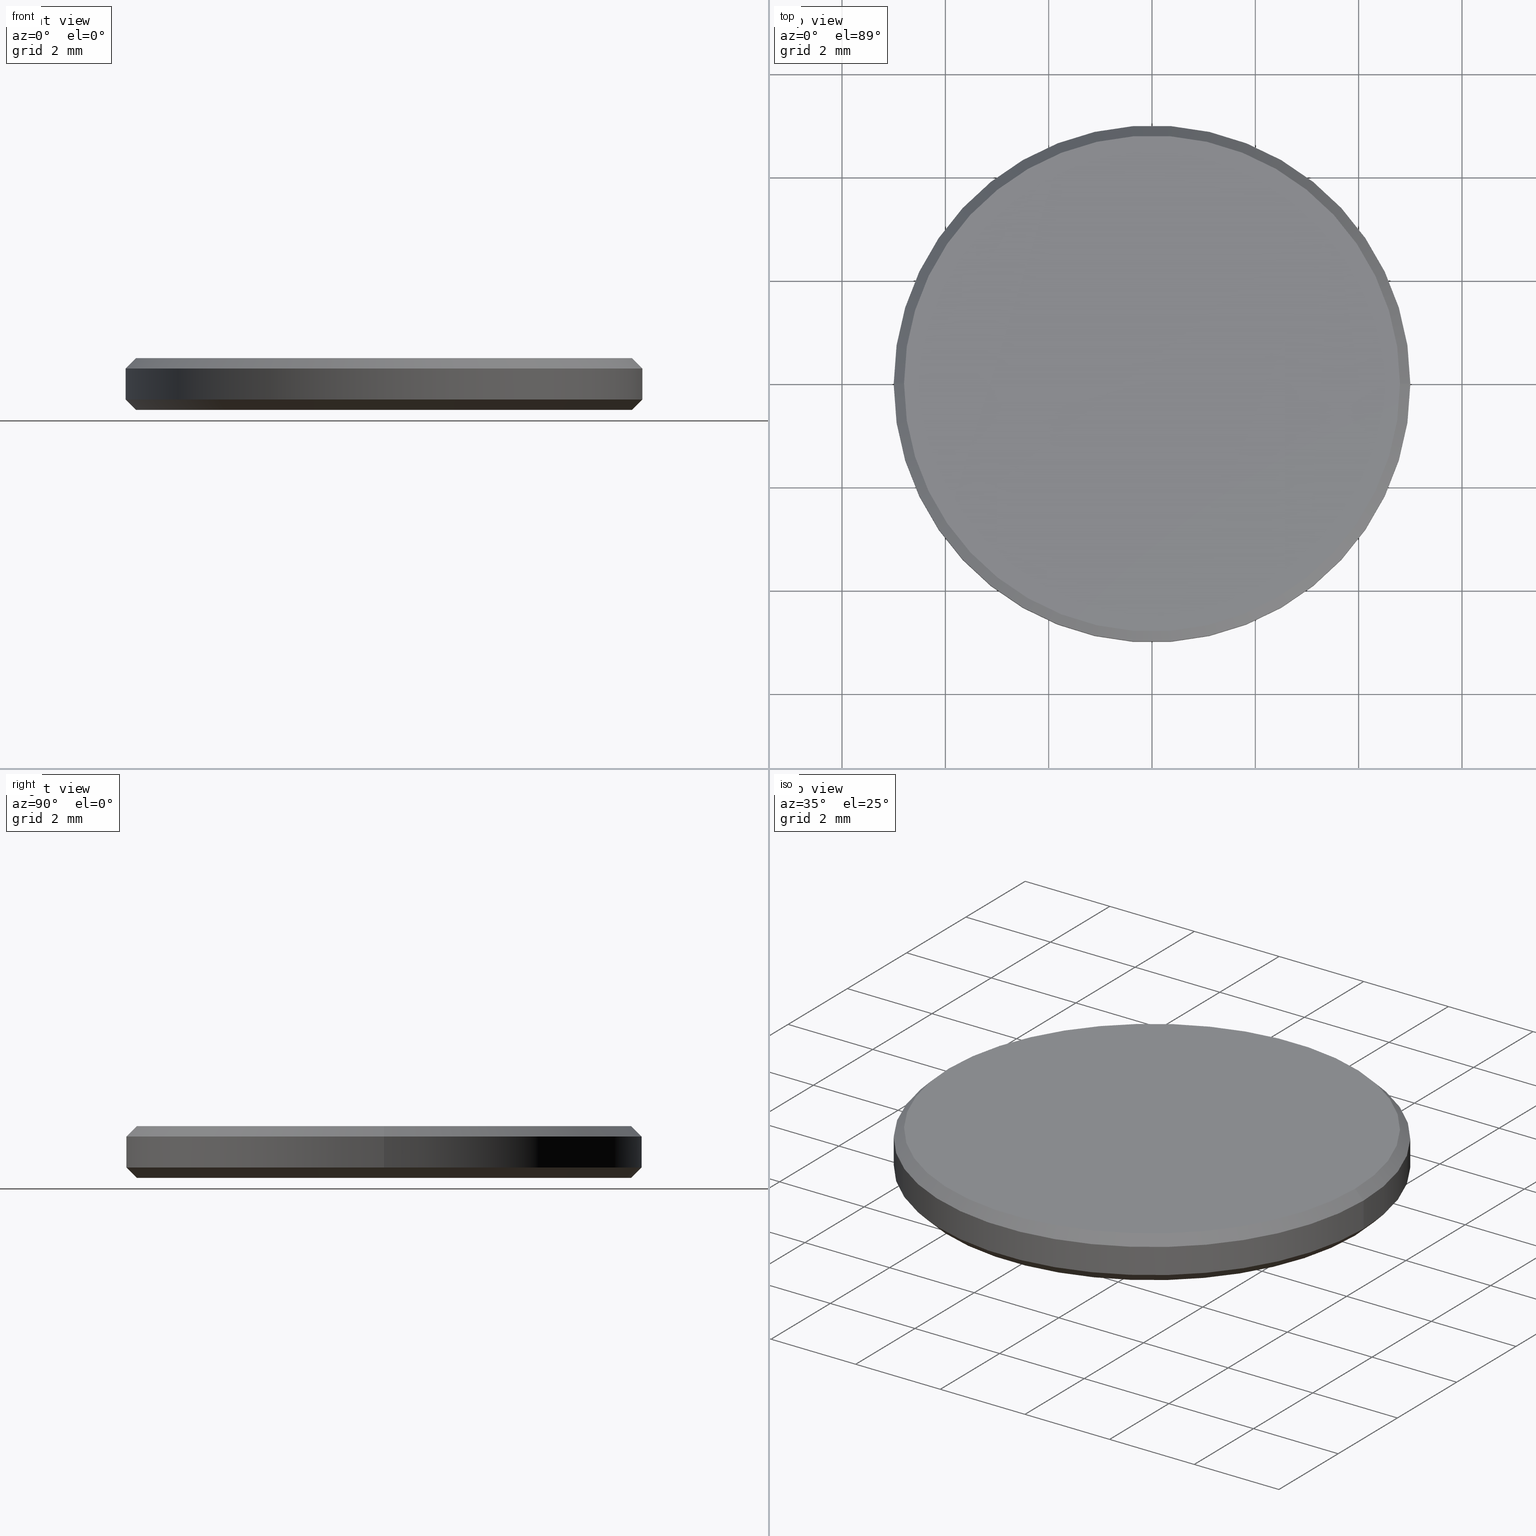
[diagram: canonical four-view strip — front | top / right | iso, engineering-drawing reading convention]
A machine part, canonical four-view strip (front | top / right | iso — engineering-drawing reading convention). The complete STEP part file that produces these views, byte-faithful:
ISO-10303-21;
HEADER;
FILE_DESCRIPTION (( 'STEP AP214' ),
    '1' );
FILE_NAME ('GNIF-190-4680-D10.STEP',
    '2024-07-19T14:44:36',
    ( '' ),
    ( '' ),
    'SwSTEP 2.0',
    'SolidWorks 2022',
    '' );
FILE_SCHEMA (( 'AUTOMOTIVE_DESIGN' ));
ENDSEC;

DATA;
#1 = MECHANICAL_DESIGN_GEOMETRIC_PRESENTATION_REPRESENTATION (  '', ( #180 ), #56 ) ;
#2 = PRESENTATION_LAYER_ASSIGNMENT (  '', '', ( #182 ) ) ;
#3 = DIRECTION ( 'NONE',  ( -0.000000000000000000, -0.000000000000000000, -1.000000000000000000 ) ) ;
#4 =( NAMED_UNIT ( * ) PLANE_ANGLE_UNIT ( ) SI_UNIT ( $, .RADIAN. ) );
#5 = EDGE_CURVE ( 'NONE', #136, #124, #221, .T. ) ;
#6 = DIRECTION ( 'NONE',  ( 1.000000000000000000, 0.000000000000000000, 0.000000000000000000 ) ) ;
#7 = DIRECTION ( 'NONE',  ( 0.7071067811865490160, 0.000000000000000000, 0.7071067811865459074 ) ) ;
#8 = APPLICATION_PROTOCOL_DEFINITION ( 'draft international standard', 'automotive_design', 1998, #197 ) ;
#9 = CIRCLE ( 'NONE', #138, 4.799999999999999822 ) ;
#10 = ADVANCED_FACE ( 'NONE', ( #236 ), #154, .T. ) ;
#11 = AXIS2_PLACEMENT_3D ( 'NONE', #160, #24, #145 ) ;
#12 =( LENGTH_UNIT ( ) NAMED_UNIT ( * ) SI_UNIT ( .MILLI., .METRE. ) );
#13 = CARTESIAN_POINT ( 'NONE',  ( 0.000000000000000000, 0.000000000000000000, 1.000000000000000000 ) ) ;
#14 = VECTOR ( 'NONE', #73, 1000.000000000000114 ) ;
#15 = CARTESIAN_POINT ( 'NONE',  ( 0.000000000000000000, 0.000000000000000000, 0.000000000000000000 ) ) ;
#16 = PRODUCT ( 'GNIF-190-4680-D10', 'GNIF-190-4680-D10', '', ( #230 ) ) ;
#17 = CARTESIAN_POINT ( 'NONE',  ( -4.800000000000002487, 0.000000000000000000, 1.000000000000000000 ) ) ;
#18 = ORIENTED_EDGE ( 'NONE', *, *, #148, .F. ) ;
#19 = CARTESIAN_POINT ( 'NONE',  ( 5.000000000000000000, 6.123233995736766282E-16, 0.8000000000000012657 ) ) ;
#20 = EDGE_CURVE ( 'NONE', #198, #136, #74, .T. ) ;
#21 = AXIS2_PLACEMENT_3D ( 'NONE', #125, #88, #194 ) ;
#22 = CIRCLE ( 'NONE', #149, 5.000000000000000000 ) ;
#23 = CARTESIAN_POINT ( 'NONE',  ( -5.000000000000000000, 0.000000000000000000, 1.000000000000000000 ) ) ;
#24 = DIRECTION ( 'NONE',  ( 0.000000000000000000, 0.000000000000000000, 1.000000000000000000 ) ) ;
#25 = AXIS2_PLACEMENT_3D ( 'NONE', #28, #103, #63 ) ;
#26 = CARTESIAN_POINT ( 'NONE',  ( 0.000000000000000000, 0.000000000000000000, 1.000000000000000000 ) ) ;
#27 = ADVANCED_FACE ( 'NONE', ( #47 ), #42, .T. ) ;
#28 = CARTESIAN_POINT ( 'NONE',  ( 0.000000000000000000, 0.000000000000000000, 0.000000000000000000 ) ) ;
#29 = DIRECTION ( 'NONE',  ( 1.000000000000000000, 0.000000000000000000, 0.000000000000000000 ) ) ;
#30 = COLOUR_RGB ( '',1.000000000000000000, 1.000000000000000000, 1.000000000000000000 ) ;
#31 = AXIS2_PLACEMENT_3D ( 'NONE', #102, #134, #205 ) ;
#32 = ORIENTED_EDGE ( 'NONE', *, *, #224, .T. ) ;
#33 = FACE_OUTER_BOUND ( 'NONE', #34, .T. ) ;
#34 = EDGE_LOOP ( 'NONE', ( #192, #37, #58, #233 ) ) ;
#35 = FACE_OUTER_BOUND ( 'NONE', #240, .T. ) ;
#36 = CARTESIAN_POINT ( 'NONE',  ( 4.799999999999999822, 0.000000000000000000, 0.000000000000000000 ) ) ;
#37 = ORIENTED_EDGE ( 'NONE', *, *, #163, .T. ) ;
#38 = EDGE_CURVE ( 'NONE', #93, #215, #9, .T. ) ;
#39 = EDGE_LOOP ( 'NONE', ( #91, #157, #76, #140 ) ) ;
#40 = CIRCLE ( 'NONE', #204, 4.800000000000002487 ) ;
#41 = DIRECTION ( 'NONE',  ( -0.000000000000000000, -0.000000000000000000, 1.000000000000000000 ) ) ;
#42 = CONICAL_SURFACE ( 'NONE', #77, 4.800000000000002487, 0.7853981633974461696 ) ;
#43 = SHAPE_DEFINITION_REPRESENTATION ( #217, #101 ) ;
#44 = EDGE_CURVE ( 'NONE', #143, #198, #40, .T. ) ;
#45 =( NAMED_UNIT ( * ) SI_UNIT ( $, .STERADIAN. ) SOLID_ANGLE_UNIT ( ) );
#46 = ADVANCED_FACE ( 'NONE', ( #33 ), #53, .T. ) ;
#47 = FACE_OUTER_BOUND ( 'NONE', #75, .T. ) ;
#48 = DIRECTION ( 'NONE',  ( 0.000000000000000000, 0.000000000000000000, -1.000000000000000000 ) ) ;
#49 = ORIENTED_EDGE ( 'NONE', *, *, #80, .T. ) ;
#50 = DIRECTION ( 'NONE',  ( 1.000000000000000000, 0.000000000000000000, 0.000000000000000000 ) ) ;
#51 = VECTOR ( 'NONE', #239, 1000.000000000000000 ) ;
#52 = ADVANCED_FACE ( 'NONE', ( #35 ), #191, .T. ) ;
#53 = CYLINDRICAL_SURFACE ( 'NONE', #21, 5.000000000000000000 ) ;
#54 = ORIENTED_EDGE ( 'NONE', *, *, #5, .T. ) ;
#55 = AXIS2_PLACEMENT_3D ( 'NONE', #181, #120, #6 ) ;
#56 =( GEOMETRIC_REPRESENTATION_CONTEXT ( 3 ) GLOBAL_UNCERTAINTY_ASSIGNED_CONTEXT ( ( #231 ) ) GLOBAL_UNIT_ASSIGNED_CONTEXT ( ( #100, #228, #45 ) ) REPRESENTATION_CONTEXT ( 'NONE', 'WORKASPACE' ) );
#57 = MANIFOLD_SOLID_BREP ( '����1', #62 ) ;
#58 = ORIENTED_EDGE ( 'NONE', *, *, #121, .T. ) ;
#59 = COLOUR_RGB ( '',1.000000000000000000, 1.000000000000000000, 1.000000000000000000 ) ;
#60 = FACE_OUTER_BOUND ( 'NONE', #39, .T. ) ;
#61 = LINE ( 'NONE', #199, #51 ) ;
#62 = CLOSED_SHELL ( 'NONE', ( #52, #27, #10, #46, #144, #72, #89, #211 ) ) ;
#63 = DIRECTION ( 'NONE',  ( 1.000000000000000000, 0.000000000000000000, 0.000000000000000000 ) ) ;
#64 = CONICAL_SURFACE ( 'NONE', #188, 5.000000000000000000, 0.7853981633974503884 ) ;
#65 = EDGE_CURVE ( 'NONE', #124, #110, #166, .T. ) ;
#66 = DIRECTION ( 'NONE',  ( 0.7071067811865460184, 8.659560562354913137E-17, -0.7071067811865489050 ) ) ;
#67 =( NAMED_UNIT ( * ) PLANE_ANGLE_UNIT ( ) SI_UNIT ( $, .RADIAN. ) );
#68 = LINE ( 'NONE', #133, #132 ) ;
#69 = ORIENTED_EDGE ( 'NONE', *, *, #5, .F. ) ;
#70 = FILL_AREA_STYLE ('',( #86 ) ) ;
#71 = ORIENTED_EDGE ( 'NONE', *, *, #38, .F. ) ;
#72 = ADVANCED_FACE ( 'NONE', ( #176 ), #222, .F. ) ;
#73 = DIRECTION ( 'NONE',  ( -0.7071067811865460184, 0.000000000000000000, -0.7071067811865489050 ) ) ;
#74 = LINE ( 'NONE', #17, #14 ) ;
#75 = EDGE_LOOP ( 'NONE', ( #90, #196, #69, #155 ) ) ;
#76 = ORIENTED_EDGE ( 'NONE', *, *, #20, .T. ) ;
#77 = AXIS2_PLACEMENT_3D ( 'NONE', #189, #107, #139 ) ;
#78 =( NAMED_UNIT ( * ) SI_UNIT ( $, .STERADIAN. ) SOLID_ANGLE_UNIT ( ) );
#79 = CARTESIAN_POINT ( 'NONE',  ( 5.000000000000000000, 0.000000000000000000, 0.1999999999999996503 ) ) ;
#80 = EDGE_CURVE ( 'NONE', #110, #127, #22, .T. ) ;
#81 = AXIS2_PLACEMENT_3D ( 'NONE', #117, #229, #227 ) ;
#82 = DIRECTION ( 'NONE',  ( 1.000000000000000000, 0.000000000000000000, 0.000000000000000000 ) ) ;
#83 = UNCERTAINTY_MEASURE_WITH_UNIT (LENGTH_MEASURE( 1.000000000000000082E-05 ), #12, 'distance_accuracy_value', 'NONE');
#84 =( GEOMETRIC_REPRESENTATION_CONTEXT ( 3 ) GLOBAL_UNCERTAINTY_ASSIGNED_CONTEXT ( ( #83 ) ) GLOBAL_UNIT_ASSIGNED_CONTEXT ( ( #12, #67, #201 ) ) REPRESENTATION_CONTEXT ( 'NONE', 'WORKASPACE' ) );
#85 = PRESENTATION_LAYER_ASSIGNMENT (  '', '', ( #180 ) ) ;
#86 = FILL_AREA_STYLE_COLOUR ( '', #59 ) ;
#87 = PRODUCT_RELATED_PRODUCT_CATEGORY ( 'part', '', ( #16 ) ) ;
#88 = DIRECTION ( 'NONE',  ( -0.000000000000000000, -0.000000000000000000, -1.000000000000000000 ) ) ;
#89 = ADVANCED_FACE ( 'NONE', ( #60 ), #175, .T. ) ;
#90 = ORIENTED_EDGE ( 'NONE', *, *, #44, .F. ) ;
#91 = ORIENTED_EDGE ( 'NONE', *, *, #170, .F. ) ;
#92 = CARTESIAN_POINT ( 'NONE',  ( 0.000000000000000000, 0.000000000000000000, 0.1999999999999996503 ) ) ;
#93 = VERTEX_POINT ( 'NONE', #36 ) ;
#94 = ORIENTED_EDGE ( 'NONE', *, *, #38, .T. ) ;
#95 = CARTESIAN_POINT ( 'NONE',  ( -5.000000000000000000, 0.000000000000000000, 0.1999999999999996503 ) ) ;
#96 = MECHANICAL_DESIGN_GEOMETRIC_PRESENTATION_REPRESENTATION (  '', ( #182 ), #114 ) ;
#97 = VECTOR ( 'NONE', #3, 1000.000000000000000 ) ;
#98 = DIRECTION ( 'NONE',  ( 0.000000000000000000, 0.000000000000000000, -1.000000000000000000 ) ) ;
#99 = CARTESIAN_POINT ( 'NONE',  ( 0.000000000000000000, 0.000000000000000000, 0.1999999999999996503 ) ) ;
#100 =( LENGTH_UNIT ( ) NAMED_UNIT ( * ) SI_UNIT ( .MILLI., .METRE. ) );
#101 = ADVANCED_BREP_SHAPE_REPRESENTATION ( 'GNIF-190-4680-D10', ( #57, #142 ), #84 ) ;
#102 = CARTESIAN_POINT ( 'NONE',  ( 0.000000000000000000, 0.000000000000000000, 0.1999999999999996503 ) ) ;
#103 = DIRECTION ( 'NONE',  ( -0.000000000000000000, -0.000000000000000000, -1.000000000000000000 ) ) ;
#104 = AXIS2_PLACEMENT_3D ( 'NONE', #26, #179, #82 ) ;
#105 = AXIS2_PLACEMENT_3D ( 'NONE', #92, #187, #29 ) ;
#106 = ORIENTED_EDGE ( 'NONE', *, *, #80, .F. ) ;
#107 = DIRECTION ( 'NONE',  ( 0.000000000000000000, 0.000000000000000000, -1.000000000000000000 ) ) ;
#108 = ORIENTED_EDGE ( 'NONE', *, *, #148, .T. ) ;
#109 = CARTESIAN_POINT ( 'NONE',  ( 5.000000000000000000, 6.123233995736766282E-16, 0.1999999999999996503 ) ) ;
#110 = VERTEX_POINT ( 'NONE', #109 ) ;
#111 = ORIENTED_EDGE ( 'NONE', *, *, #65, .T. ) ;
#112 = CARTESIAN_POINT ( 'NONE',  ( -5.000000000000000000, 0.000000000000000000, 0.8000000000000012657 ) ) ;
#113 =( LENGTH_UNIT ( ) NAMED_UNIT ( * ) SI_UNIT ( .MILLI., .METRE. ) );
#114 =( GEOMETRIC_REPRESENTATION_CONTEXT ( 3 ) GLOBAL_UNCERTAINTY_ASSIGNED_CONTEXT ( ( #165 ) ) GLOBAL_UNIT_ASSIGNED_CONTEXT ( ( #113, #4, #78 ) ) REPRESENTATION_CONTEXT ( 'NONE', 'WORKASPACE' ) );
#115 = DIRECTION ( 'NONE',  ( -0.000000000000000000, -0.000000000000000000, -1.000000000000000000 ) ) ;
#116 = CIRCLE ( 'NONE', #55, 5.000000000000000000 ) ;
#117 = CARTESIAN_POINT ( 'NONE',  ( 0.000000000000000000, 0.000000000000000000, 1.000000000000000000 ) ) ;
#118 = CARTESIAN_POINT ( 'NONE',  ( -4.800000000000002487, 0.000000000000000000, 1.000000000000000000 ) ) ;
#119 = FILL_AREA_STYLE_COLOUR ( '', #30 ) ;
#120 = DIRECTION ( 'NONE',  ( 0.000000000000000000, 0.000000000000000000, -1.000000000000000000 ) ) ;
#121 = EDGE_CURVE ( 'NONE', #136, #127, #171, .T. ) ;
#122 = DIRECTION ( 'NONE',  ( -0.000000000000000000, -0.000000000000000000, -1.000000000000000000 ) ) ;
#123 = VECTOR ( 'NONE', #115, 1000.000000000000000 ) ;
#124 = VERTEX_POINT ( 'NONE', #19 ) ;
#125 = CARTESIAN_POINT ( 'NONE',  ( 0.000000000000000000, 0.000000000000000000, 1.000000000000000000 ) ) ;
#126 = ORIENTED_EDGE ( 'NONE', *, *, #131, .F. ) ;
#127 = VERTEX_POINT ( 'NONE', #95 ) ;
#128 = CARTESIAN_POINT ( 'NONE',  ( 0.000000000000000000, 0.000000000000000000, 1.000000000000000000 ) ) ;
#129 = PLANE ( 'NONE',  #81 ) ;
#130 = DIRECTION ( 'NONE',  ( 1.000000000000000000, 0.000000000000000000, 0.000000000000000000 ) ) ;
#131 = EDGE_CURVE ( 'NONE', #215, #127, #61, .T. ) ;
#132 = VECTOR ( 'NONE', #66, 1000.000000000000114 ) ;
#133 = CARTESIAN_POINT ( 'NONE',  ( 4.800000000000002487, 5.878304635907297169E-16, 1.000000000000000000 ) ) ;
#134 = DIRECTION ( 'NONE',  ( -0.000000000000000000, -0.000000000000000000, 1.000000000000000000 ) ) ;
#135 = SURFACE_SIDE_STYLE ('',( #151 ) ) ;
#136 = VERTEX_POINT ( 'NONE', #112 ) ;
#137 = DIRECTION ( 'NONE',  ( -0.000000000000000000, -0.000000000000000000, -1.000000000000000000 ) ) ;
#138 = AXIS2_PLACEMENT_3D ( 'NONE', #15, #137, #218 ) ;
#139 = DIRECTION ( 'NONE',  ( -1.000000000000000000, 0.000000000000000000, 0.000000000000000000 ) ) ;
#140 = ORIENTED_EDGE ( 'NONE', *, *, #163, .F. ) ;
#141 = ORIENTED_EDGE ( 'NONE', *, *, #224, .F. ) ;
#142 = AXIS2_PLACEMENT_3D ( 'NONE', #206, #208, #186 ) ;
#143 = VERTEX_POINT ( 'NONE', #174 ) ;
#144 = ADVANCED_FACE ( 'NONE', ( #223 ), #129, .T. ) ;
#145 = DIRECTION ( 'NONE',  ( 1.000000000000000000, 0.000000000000000000, -0.000000000000000000 ) ) ;
#146 = SURFACE_STYLE_USAGE ( .BOTH. , #207 ) ;
#147 = FILL_AREA_STYLE ('',( #119 ) ) ;
#148 = EDGE_CURVE ( 'NONE', #215, #93, #178, .T. ) ;
#149 = AXIS2_PLACEMENT_3D ( 'NONE', #99, #200, #130 ) ;
#150 = CARTESIAN_POINT ( 'NONE',  ( -4.799999999999999822, 6.000769315822029754E-16, 0.000000000000000000 ) ) ;
#151 = SURFACE_STYLE_FILL_AREA ( #70 ) ;
#152 = ORIENTED_EDGE ( 'NONE', *, *, #131, .T. ) ;
#153 = DIRECTION ( 'NONE',  ( 1.000000000000000000, 0.000000000000000000, 0.000000000000000000 ) ) ;
#154 = CYLINDRICAL_SURFACE ( 'NONE', #214, 5.000000000000000000 ) ;
#155 = ORIENTED_EDGE ( 'NONE', *, *, #20, .F. ) ;
#156 = EDGE_LOOP ( 'NONE', ( #94, #108 ) ) ;
#157 = ORIENTED_EDGE ( 'NONE', *, *, #183, .F. ) ;
#158 = VECTOR ( 'NONE', #7, 1000.000000000000000 ) ;
#159 = PRESENTATION_STYLE_ASSIGNMENT (( #213 ) ) ;
#160 = CARTESIAN_POINT ( 'NONE',  ( 0.000000000000000000, 0.000000000000000000, 0.000000000000000000 ) ) ;
#161 = LINE ( 'NONE', #79, #158 ) ;
#162 = PRODUCT_DEFINITION ( 'δ֪', '', #234, #185 ) ;
#163 = EDGE_CURVE ( 'NONE', #124, #136, #116, .T. ) ;
#164 = CARTESIAN_POINT ( 'NONE',  ( 0.000000000000000000, 0.000000000000000000, 0.1999999999999996503 ) ) ;
#165 = UNCERTAINTY_MEASURE_WITH_UNIT (LENGTH_MEASURE( 1.000000000000000082E-05 ), #113, 'distance_accuracy_value', 'NONE');
#166 = LINE ( 'NONE', #177, #123 ) ;
#167 = CARTESIAN_POINT ( 'NONE',  ( 0.000000000000000000, 0.000000000000000000, 1.000000000000000000 ) ) ;
#168 = AXIS2_PLACEMENT_3D ( 'NONE', #169, #48, #153 ) ;
#169 = CARTESIAN_POINT ( 'NONE',  ( 0.000000000000000000, 0.000000000000000000, 0.8000000000000012657 ) ) ;
#170 = EDGE_CURVE ( 'NONE', #143, #124, #68, .T. ) ;
#171 = LINE ( 'NONE', #23, #97 ) ;
#172 = ORIENTED_EDGE ( 'NONE', *, *, #190, .F. ) ;
#173 = ORIENTED_EDGE ( 'NONE', *, *, #121, .F. ) ;
#174 = CARTESIAN_POINT ( 'NONE',  ( 4.800000000000002487, 6.000769315822031726E-16, 1.000000000000000000 ) ) ;
#175 = CONICAL_SURFACE ( 'NONE', #216, 4.800000000000002487, 0.7853981633974461696 ) ;
#176 = FACE_OUTER_BOUND ( 'NONE', #156, .T. ) ;
#177 = CARTESIAN_POINT ( 'NONE',  ( 5.000000000000000000, 6.123233995736766282E-16, 1.000000000000000000 ) ) ;
#178 = CIRCLE ( 'NONE', #25, 4.799999999999999822 ) ;
#179 = DIRECTION ( 'NONE',  ( 0.000000000000000000, 0.000000000000000000, 1.000000000000000000 ) ) ;
#180 = STYLED_ITEM ( 'NONE', ( #225 ), #101 ) ;
#181 = CARTESIAN_POINT ( 'NONE',  ( 0.000000000000000000, 0.000000000000000000, 0.8000000000000012657 ) ) ;
#182 = STYLED_ITEM ( 'NONE', ( #159 ), #57 ) ;
#183 = EDGE_CURVE ( 'NONE', #198, #143, #202, .T. ) ;
#184 = DIRECTION ( 'NONE',  ( 1.000000000000000000, 0.000000000000000000, 0.000000000000000000 ) ) ;
#185 = PRODUCT_DEFINITION_CONTEXT ( 'detailed design', #212, 'design' ) ;
#186 = DIRECTION ( 'NONE',  ( 1.000000000000000000, 0.000000000000000000, 0.000000000000000000 ) ) ;
#187 = DIRECTION ( 'NONE',  ( -0.000000000000000000, -0.000000000000000000, 1.000000000000000000 ) ) ;
#188 = AXIS2_PLACEMENT_3D ( 'NONE', #164, #41, #184 ) ;
#189 = CARTESIAN_POINT ( 'NONE',  ( 0.000000000000000000, 0.000000000000000000, 1.000000000000000000 ) ) ;
#190 = EDGE_CURVE ( 'NONE', #127, #110, #226, .T. ) ;
#191 = CONICAL_SURFACE ( 'NONE', #105, 5.000000000000000000, 0.7853981633974503884 ) ;
#192 = ORIENTED_EDGE ( 'NONE', *, *, #65, .F. ) ;
#193 = EDGE_LOOP ( 'NONE', ( #126, #71, #32, #172 ) ) ;
#194 = DIRECTION ( 'NONE',  ( -1.000000000000000000, 0.000000000000000000, 0.000000000000000000 ) ) ;
#195 = DIRECTION ( 'NONE',  ( -1.000000000000000000, 0.000000000000000000, 0.000000000000000000 ) ) ;
#196 = ORIENTED_EDGE ( 'NONE', *, *, #170, .T. ) ;
#197 = APPLICATION_CONTEXT ( 'automotive_design' ) ;
#198 = VERTEX_POINT ( 'NONE', #118 ) ;
#199 = CARTESIAN_POINT ( 'NONE',  ( -5.000000000000000000, 6.123233995736765296E-16, 0.1999999999999996503 ) ) ;
#200 = DIRECTION ( 'NONE',  ( -0.000000000000000000, -0.000000000000000000, 1.000000000000000000 ) ) ;
#201 =( NAMED_UNIT ( * ) SI_UNIT ( $, .STERADIAN. ) SOLID_ANGLE_UNIT ( ) );
#202 = CIRCLE ( 'NONE', #104, 4.800000000000002487 ) ;
#203 = SURFACE_STYLE_FILL_AREA ( #147 ) ;
#204 = AXIS2_PLACEMENT_3D ( 'NONE', #13, #232, #50 ) ;
#205 = DIRECTION ( 'NONE',  ( 1.000000000000000000, 0.000000000000000000, 0.000000000000000000 ) ) ;
#206 = CARTESIAN_POINT ( 'NONE',  ( 0.000000000000000000, 0.000000000000000000, 0.000000000000000000 ) ) ;
#207 = SURFACE_SIDE_STYLE ('',( #203 ) ) ;
#208 = DIRECTION ( 'NONE',  ( 0.000000000000000000, 0.000000000000000000, 1.000000000000000000 ) ) ;
#209 = FACE_OUTER_BOUND ( 'NONE', #193, .T. ) ;
#210 = APPLICATION_PROTOCOL_DEFINITION ( 'draft international standard', 'automotive_design', 1998, #212 ) ;
#211 = ADVANCED_FACE ( 'NONE', ( #209 ), #64, .T. ) ;
#212 = APPLICATION_CONTEXT ( 'automotive_design' ) ;
#213 = SURFACE_STYLE_USAGE ( .BOTH. , #135 ) ;
#214 = AXIS2_PLACEMENT_3D ( 'NONE', #167, #122, #235 ) ;
#215 = VERTEX_POINT ( 'NONE', #150 ) ;
#216 = AXIS2_PLACEMENT_3D ( 'NONE', #128, #98, #195 ) ;
#217 = PRODUCT_DEFINITION_SHAPE ( 'NONE', 'NONE',  #162 ) ;
#218 = DIRECTION ( 'NONE',  ( 1.000000000000000000, 0.000000000000000000, 0.000000000000000000 ) ) ;
#219 = EDGE_LOOP ( 'NONE', ( #238, #220 ) ) ;
#220 = ORIENTED_EDGE ( 'NONE', *, *, #44, .T. ) ;
#221 = CIRCLE ( 'NONE', #168, 5.000000000000000000 ) ;
#222 = PLANE ( 'NONE',  #11 ) ;
#223 = FACE_OUTER_BOUND ( 'NONE', #219, .T. ) ;
#224 = EDGE_CURVE ( 'NONE', #93, #110, #161, .T. ) ;
#225 = PRESENTATION_STYLE_ASSIGNMENT (( #146 ) ) ;
#226 = CIRCLE ( 'NONE', #31, 5.000000000000000000 ) ;
#227 = DIRECTION ( 'NONE',  ( 1.000000000000000000, 0.000000000000000000, -0.000000000000000000 ) ) ;
#228 =( NAMED_UNIT ( * ) PLANE_ANGLE_UNIT ( ) SI_UNIT ( $, .RADIAN. ) );
#229 = DIRECTION ( 'NONE',  ( 0.000000000000000000, 0.000000000000000000, 1.000000000000000000 ) ) ;
#230 = PRODUCT_CONTEXT ( 'NONE', #197, 'mechanical' ) ;
#231 = UNCERTAINTY_MEASURE_WITH_UNIT (LENGTH_MEASURE( 1.000000000000000082E-05 ), #100, 'distance_accuracy_value', 'NONE');
#232 = DIRECTION ( 'NONE',  ( 0.000000000000000000, 0.000000000000000000, 1.000000000000000000 ) ) ;
#233 = ORIENTED_EDGE ( 'NONE', *, *, #190, .T. ) ;
#234 = PRODUCT_DEFINITION_FORMATION_WITH_SPECIFIED_SOURCE ( '�κ�', '', #16, .NOT_KNOWN. ) ;
#235 = DIRECTION ( 'NONE',  ( -1.000000000000000000, 0.000000000000000000, 0.000000000000000000 ) ) ;
#236 = FACE_OUTER_BOUND ( 'NONE', #237, .T. ) ;
#237 = EDGE_LOOP ( 'NONE', ( #54, #111, #49, #173 ) ) ;
#238 = ORIENTED_EDGE ( 'NONE', *, *, #183, .T. ) ;
#239 = DIRECTION ( 'NONE',  ( -0.7071067811865490160, 8.659560562354950115E-17, 0.7071067811865459074 ) ) ;
#240 = EDGE_LOOP ( 'NONE', ( #18, #152, #106, #141 ) ) ;
ENDSEC;
END-ISO-10303-21;
